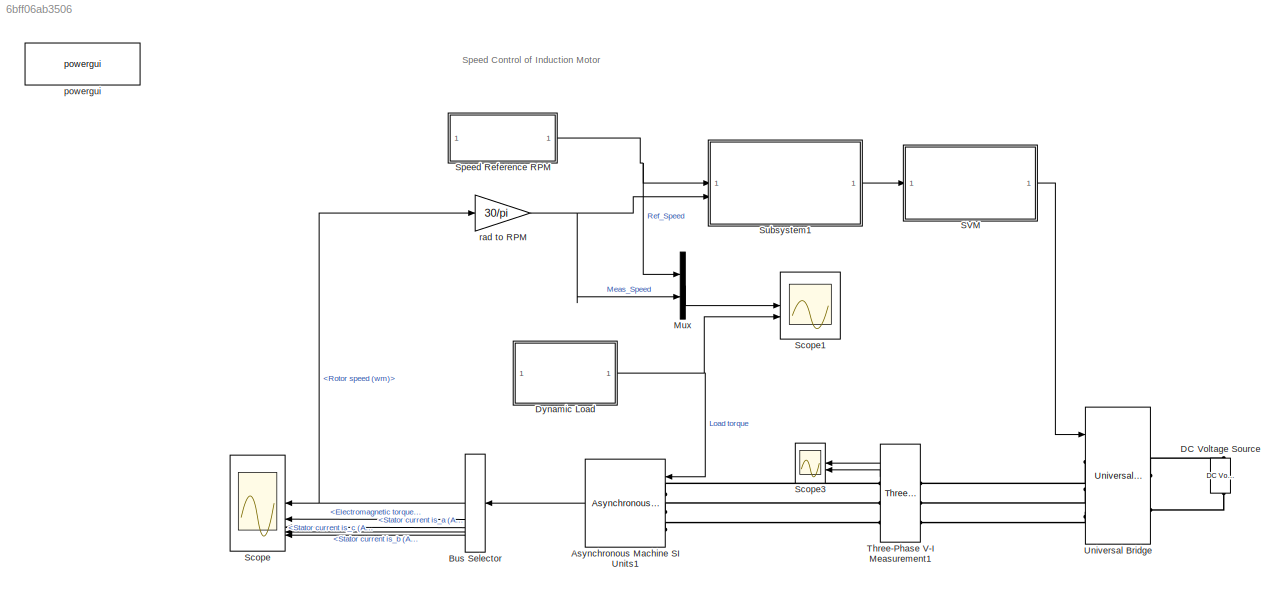
MODEL slx_6bff06ab3506
KIND model
CONFIG AbsTol = auto
CONFIG EnableMultiTasking = on
CONFIG FixedStep = auto
CONFIG InitFcn = f=50;\nfs=2000;\n%jj=readfis('jayashree1');
CONFIG MaxStep = auto
CONFIG MinStep = auto
CONFIG RelTol = 1e-3
CONFIG SampleTimeConstraint = Unconstrained
CONFIG SolverName = ode23t
CONFIG StartTime = 0.0
CONFIG StopTime = 3
BLOCK [Reference] Asynchronous Machine SI Units1  REF=spsAsynchronousMachineSIUnitsLib/Asynchronous Machine
SI Units
  AttributesFormatString = \n
  LibrarySourceBlock = sps_lib/Electrical Machines/Asynchronous Machine\nSI Units
  SourceBlock = spsAsynchronousMachineSIUnitsLib/Asynchronous Machine\nSI Units
  SourceType = Asynchronous Machine
BLOCK [BusSelector] Bus Selector
  NameLocation = top
  OutputSignals = Mechanical.Rotor speed (wm),Mechanical.Electromagnetic torque Te (N*m),Stator measurements.Stator current is_a (A),Stator measurements.Stator current is_b (A),Stator measurements.Stator current is_c (A)
BLOCK [Reference] DC Voltage Source  REF=spsDCVoltageSourceLib/DC Voltage Source
  LibrarySourceBlock = sps_lib/Sources/DC Voltage Source
  NameLocation = right
  SourceBlock = spsDCVoltageSourceLib/DC Voltage Source
  SourceType = DC Voltage Source
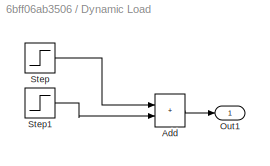
BLOCK [SubSystem] Dynamic Load 
BLOCK [Sum] Dynamic Load /Add
  IconShape = rectangular
BLOCK [Outport] Dynamic Load /Out1
BLOCK [Step] Dynamic Load /Step
  After = 10
  Before = 5
  SampleTime = 0
  Time = 0.2
BLOCK [Step] Dynamic Load /Step1
  After = 2
  SampleTime = 0
  Time = 1.2
BLOCK [Mux] Mux
  DisplayOption = bar
  Inputs = 2
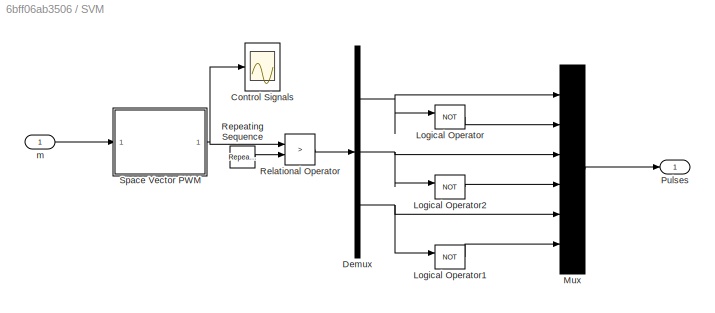
BLOCK [SubSystem] SVM
BLOCK [Scope] SVM/Control Signals
  Floating = off
  NumInputPorts = 1
  ScopeSpecificationString = Simulink.scopes.TimeScopeBlockCfg('CurrentConfiguration', extmgr.ConfigurationSet(extmgr.Configuration('Core','General UI',true),extmgr.Configuration('Core','Source UI',true),extmgr.Configuration('Sources','WiredSimulink',true,'DataLoggingVariableName','ScopeData1','DataLoggingSaveFormat','StructureWithTime','DataLoggingMaxPoints','25000','DataLoggingDecimation','1','DataLoggingDecimateData',true)...<+1811ch>
BLOCK [Demux] SVM/Demux
  Outputs = 3
BLOCK [Logic] SVM/Logical Operator
  AllPortsSameDT = off
  Operator = NOT
  OutDataTypeStr = boolean
BLOCK [Logic] SVM/Logical Operator1
  AllPortsSameDT = off
  Operator = NOT
  OutDataTypeStr = boolean
BLOCK [Logic] SVM/Logical Operator2
  AllPortsSameDT = off
  Operator = NOT
  OutDataTypeStr = boolean
BLOCK [Mux] SVM/Mux
  DisplayOption = bar
  Inputs = 6
BLOCK [Outport] SVM/Pulses
BLOCK [RelationalOperator] SVM/Relational Operator
  InputSameDT = off
  Operator = >
BLOCK [Reference] SVM/Repeating Sequence  REF=simulink/Sources/Repeating
Sequence
  SourceBlock = simulink/Sources/Repeating\nSequence
  SourceType = Repeating table
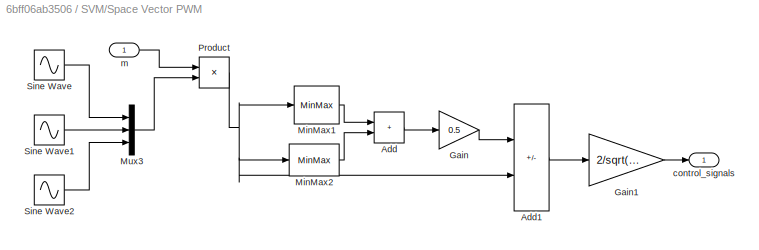
BLOCK [SubSystem] SVM/Space Vector PWM
BLOCK [Sum] SVM/Space Vector PWM/Add
  IconShape = rectangular
BLOCK [Sum] SVM/Space Vector PWM/Add1
  IconShape = rectangular
  Inputs = -+
BLOCK [Gain] SVM/Space Vector PWM/Gain
  Gain = 0.5
BLOCK [Gain] SVM/Space Vector PWM/Gain1
  Gain = 2/sqrt(3)
BLOCK [MinMax] SVM/Space Vector PWM/MinMax1
  InputSameDT = on
  SaturateOnIntegerOverflow = on
BLOCK [MinMax] SVM/Space Vector PWM/MinMax2
  Function = max
  InputSameDT = on
  SaturateOnIntegerOverflow = on
BLOCK [Mux] SVM/Space Vector PWM/Mux3
  DisplayOption = bar
  Inputs = 3
BLOCK [Product] SVM/Space Vector PWM/Product
  RndMeth = Zero
BLOCK [Sin] SVM/Space Vector PWM/Sine Wave
  Frequency = 2*pi*f
  Phase = pi/2
  SampleTime = 0
BLOCK [Sin] SVM/Space Vector PWM/Sine Wave1
  Frequency = 2*pi*f
  Phase = pi/2 -2*pi/3
  SampleTime = 0
BLOCK [Sin] SVM/Space Vector PWM/Sine Wave2
  Frequency = 2*pi*f
  Phase = pi/2+2*pi/3
  SampleTime = 0
BLOCK [Outport] SVM/Space Vector PWM/control_signals
BLOCK [Inport] SVM/Space Vector PWM/m
BLOCK [Inport] SVM/m
BLOCK [Scope] Scope
  Floating = off
  NameLocation = top
  NumInputPorts = 5
  ScopeSpecificationString = Simulink.scopes.TimeScopeBlockCfg('CurrentConfiguration', extmgr.ConfigurationSet(extmgr.Configuration('Core','General UI',true),extmgr.Configuration('Core','Source UI',true),extmgr.Configuration('Sources','WiredSimulink',true,'DataLogging',true,'DataLoggingVariableName','data','DataLoggingSaveFormat','StructureWithTime','DataLoggingDecimation','1','DataLoggingDecimateData',true),extmgr.Configurat...<+4534ch>
BLOCK [Scope] Scope1
  Floating = off
  NumInputPorts = 2
  ScopeSpecificationString = Simulink.scopes.TimeScopeBlockCfg('CurrentConfiguration', extmgr.ConfigurationSet(extmgr.Configuration('Core','General UI',true,'FigureColor',[1 1 1]),extmgr.Configuration('Core','Source UI',true),extmgr.Configuration('Sources','WiredSimulink',true,'DataLogging',true,'DataLoggingVariableName','sd','DataLoggingSaveFormat','StructureWithTime','DataLoggingDecimation','1','DataLoggingDecimateData',tru...<+2784ch>
BLOCK [Scope] Scope3
  Floating = off
  NameLocation = top
  NumInputPorts = 2
  ScopeSpecificationString = Simulink.scopes.TimeScopeBlockCfg('CurrentConfiguration', extmgr.ConfigurationSet(extmgr.Configuration('Core','General UI',true),extmgr.Configuration('Core','Source UI',true),extmgr.Configuration('Sources','WiredSimulink',true,'DataLoggingSaveFormat','StructureWithTime','DataLoggingDecimation','1','DataLoggingDecimateData',true),extmgr.Configuration('Visuals','Time Domain',true,'SerializedDisplays...<+2575ch>
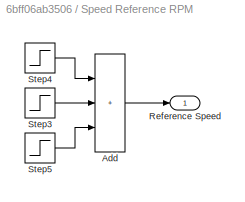
BLOCK [SubSystem] Speed Reference RPM
BLOCK [Sum] Speed Reference RPM/Add
  IconShape = rectangular
  Inputs = +++
BLOCK [Outport] Speed Reference RPM/Reference Speed
BLOCK [Step] Speed Reference RPM/Step3
  After = 50
  SampleTime = 0
  Time = 1.5
BLOCK [Step] Speed Reference RPM/Step4
  After = 1400
  Before = 1300
  SampleTime = 0
BLOCK [Step] Speed Reference RPM/Step5
  After = -100
  SampleTime = 0
  Time = 2
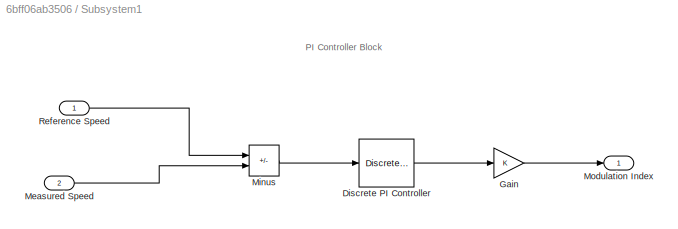
BLOCK [SubSystem] Subsystem1
  NameLocation = top
BLOCK [Reference] Subsystem1/Discrete PI Controller  REF=powerlib_extras/Discrete 
Control Blocks/Discrete
PI Controller
  SourceBlock = powerlib_extras/Discrete \nControl Blocks/Discrete\nPI Controller
  SourceType = Discrete PI Controller
BLOCK [Gain] Subsystem1/Gain
BLOCK [Inport] Subsystem1/Measured Speed
  Port = 2
BLOCK [Sum] Subsystem1/Minus
  IconShape = rectangular
  Inputs = +-
BLOCK [Outport] Subsystem1/Modulation Index
BLOCK [Inport] Subsystem1/Reference Speed
BLOCK [Reference] Three-Phase V-I Measurement1  REF=spsThreePhaseVIMeasurementLib/Three-Phase
V-I Measurement
  LibrarySourceBlock = sps_lib/Sensors and Measurements/Three-Phase\nV-I Measurement
  NameLocation = top
  SourceBlock = spsThreePhaseVIMeasurementLib/Three-Phase\nV-I Measurement
  SourceType = Three-Phase VI Measurement
BLOCK [Reference] Universal Bridge  REF=spsUniversalBridgeLib/Universal Bridge
  LibrarySourceBlock = sps_lib/Power Electronics/Universal Bridge
  SourceBlock = spsUniversalBridgeLib/Universal Bridge
  SourceType = Universal Bridge
BLOCK [Reference] powergui  REF=sps_lib/powergui
  Priority = 1
  SourceBlock = sps_lib/powergui
  SourceType = PSB option menu block
BLOCK [Gain] rad to RPM
  Gain = 30/pi
ANNOTATION (root): Speed Control of Induction Motor
ANNOTATION Subsystem1: PI Controller Block
LINE Asynchronous Machine SI Units1:1 -> Bus Selector:1
NET Bus Selector:1 -> Scope:1, rad to RPM:1
LINE Bus Selector:2 -> Scope:2
LINE Bus Selector:3 -> Scope:3
LINE Bus Selector:4 -> Scope:4
LINE Bus Selector:5 -> Scope:5
LINE Dynamic Load /Add:1 -> Dynamic Load /Out1:1
LINE Dynamic Load /Step1:1 -> Dynamic Load /Add:2
LINE Dynamic Load /Step:1 -> Dynamic Load /Add:1
NET Dynamic Load :1 -> Asynchronous Machine SI Units1:1, Scope1:2
LINE Mux:1 -> Scope1:1
NET SVM/Demux:1 -> SVM/Logical Operator:1, SVM/Mux:1
NET SVM/Demux:2 -> SVM/Logical Operator2:1, SVM/Mux:3
NET SVM/Demux:3 -> SVM/Logical Operator1:1, SVM/Mux:5
LINE SVM/Logical Operator1:1 -> SVM/Mux:6
LINE SVM/Logical Operator2:1 -> SVM/Mux:4
LINE SVM/Logical Operator:1 -> SVM/Mux:2
LINE SVM/Mux:1 -> SVM/Pulses:1
LINE SVM/Relational Operator:1 -> SVM/Demux:1
LINE SVM/Repeating Sequence:1 -> SVM/Relational Operator:2
LINE SVM/Space Vector PWM/Add1:1 -> SVM/Space Vector PWM/Gain1:1
LINE SVM/Space Vector PWM/Add:1 -> SVM/Space Vector PWM/Gain:1
LINE SVM/Space Vector PWM/Gain1:1 -> SVM/Space Vector PWM/control_signals:1
LINE SVM/Space Vector PWM/Gain:1 -> SVM/Space Vector PWM/Add1:1
LINE SVM/Space Vector PWM/MinMax1:1 -> SVM/Space Vector PWM/Add:1
LINE SVM/Space Vector PWM/MinMax2:1 -> SVM/Space Vector PWM/Add:2
LINE SVM/Space Vector PWM/Mux3:1 -> SVM/Space Vector PWM/Product:2
NET SVM/Space Vector PWM/Product:1 -> SVM/Space Vector PWM/Add1:2, SVM/Space Vector PWM/MinMax1:1, SVM/Space Vector PWM/MinMax2:1
LINE SVM/Space Vector PWM/Sine Wave1:1 -> SVM/Space Vector PWM/Mux3:2
LINE SVM/Space Vector PWM/Sine Wave2:1 -> SVM/Space Vector PWM/Mux3:3
LINE SVM/Space Vector PWM/Sine Wave:1 -> SVM/Space Vector PWM/Mux3:1
LINE SVM/Space Vector PWM/m:1 -> SVM/Space Vector PWM/Product:1
NET SVM/Space Vector PWM:1 -> SVM/Control Signals:1, SVM/Relational Operator:1
LINE SVM/m:1 -> SVM/Space Vector PWM:1
LINE SVM:1 -> Universal Bridge:1
LINE Speed Reference RPM/Add:1 -> Speed Reference RPM/Reference Speed:1
LINE Speed Reference RPM/Step3:1 -> Speed Reference RPM/Add:2
LINE Speed Reference RPM/Step4:1 -> Speed Reference RPM/Add:1
LINE Speed Reference RPM/Step5:1 -> Speed Reference RPM/Add:3
NET Speed Reference RPM:1 -> Mux:1, Subsystem1:1
LINE Subsystem1/Discrete PI Controller:1 -> Subsystem1/Gain:1
LINE Subsystem1/Gain:1 -> Subsystem1/Modulation Index:1
LINE Subsystem1/Measured Speed:1 -> Subsystem1/Minus:2
LINE Subsystem1/Minus:1 -> Subsystem1/Discrete PI Controller:1
LINE Subsystem1/Reference Speed:1 -> Subsystem1/Minus:1
LINE Subsystem1:1 -> SVM:1
LINE Three-Phase V-I Measurement1:1 -> Scope3:1
LINE Three-Phase V-I Measurement1:2 -> Scope3:2
NET rad to RPM:1 -> Mux:2, Subsystem1:2
PLINE Asynchronous Machine SI Units1:LConn1 -- Three-Phase V-I Measurement1:RConn1
PLINE Asynchronous Machine SI Units1:LConn2 -- Three-Phase V-I Measurement1:RConn2
PLINE Asynchronous Machine SI Units1:LConn3 -- Three-Phase V-I Measurement1:RConn3
PLINE DC Voltage Source:LConn1 -- Universal Bridge:RConn2
PLINE DC Voltage Source:RConn1 -- Universal Bridge:RConn1
PLINE Three-Phase V-I Measurement1:LConn1 -- Universal Bridge:LConn1
PLINE Three-Phase V-I Measurement1:LConn2 -- Universal Bridge:LConn2
PLINE Three-Phase V-I Measurement1:LConn3 -- Universal Bridge:LConn3
note: NET lines group one-source signal fan-out (src -> all destinations, sorted); 1:1 wires keep LINE
